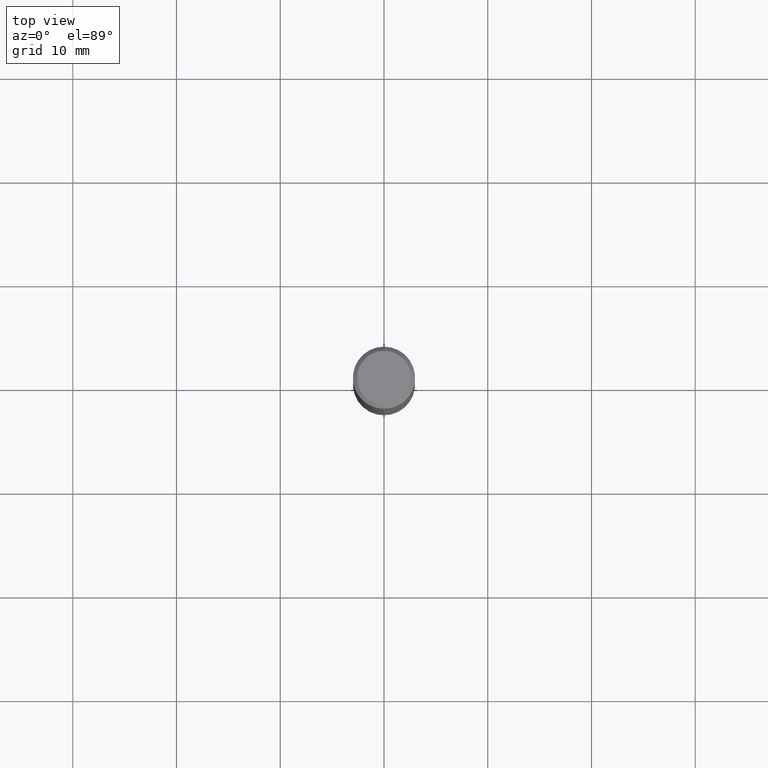
[diagram: clean part render]
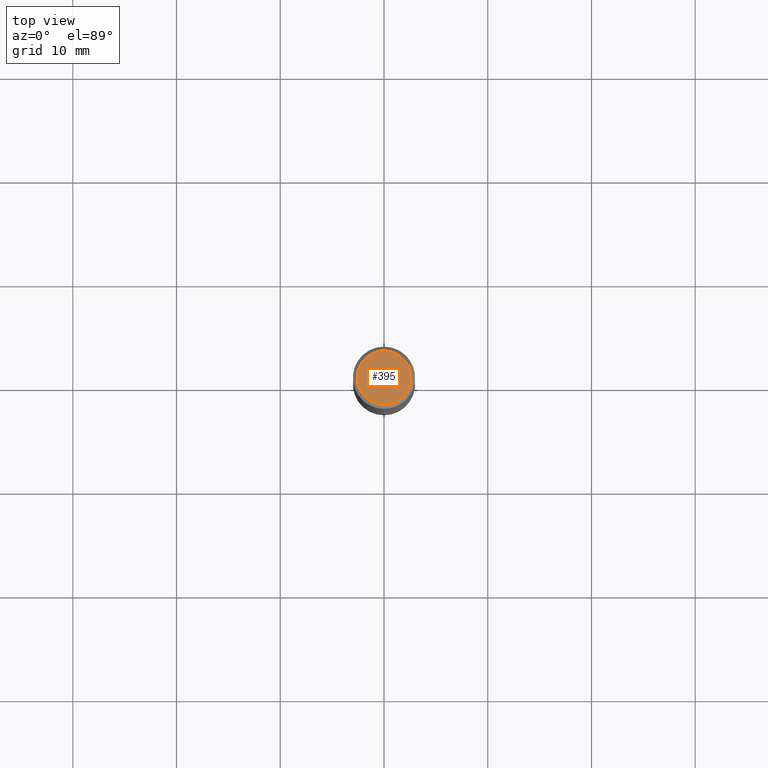
[diagram: same view with one face highlighted and labeled with its STEP entity id]
A machine part, top view. The second image highlights one B-rep face of the part: STEP entity #395.
In plain terms, the highlighted planar face has unit normal (-0, 0, 1).
Its self-contained STEP definition (entity closure, byte-faithful):
#323=EDGE_CURVE('',#615,#711,#859,.T.);
#395=ADVANCED_FACE('',(#938),#939,.T.);
#507=EDGE_CURVE('',#711,#615,#1061,.T.);
#615=VERTEX_POINT('',#1179);
#711=VERTEX_POINT('',#1281);
#859=CIRCLE('',#1616,2.6);
#938=FACE_OUTER_BOUND('',#2208,.T.);
#939=PLANE('',#2209);
#1061=CIRCLE('',#4133,2.6);
#1179=CARTESIAN_POINT('',(3.18397651993818E-016,-2.6,0.0));
#1281=CARTESIAN_POINT('',(0.0,2.6,0.0));
#1616=AXIS2_PLACEMENT_3D('',#7313,#7314,#7315);
#2208=EDGE_LOOP('',(#7421,#7422));
#2209=AXIS2_PLACEMENT_3D('',#7423,#7424,#7425);
#4133=AXIS2_PLACEMENT_3D('',#7548,#7549,#7550);
#7313=CARTESIAN_POINT('',(0.0,0.0,0.0));
#7314=DIRECTION('',(0.0,0.0,-1.0));
#7315=DIRECTION('',(0.0,1.0,0.0));
#7421=ORIENTED_EDGE('',*,*,#507,.F.);
#7422=ORIENTED_EDGE('',*,*,#323,.F.);
#7423=CARTESIAN_POINT('',(0.0,1.3,0.0));
#7424=DIRECTION('',(-0.0,0.0,1.0));
#7425=DIRECTION('',(0.0,-1.0,0.0));
#7548=CARTESIAN_POINT('',(0.0,0.0,0.0));
#7549=DIRECTION('',(0.0,0.0,-1.0));
#7550=DIRECTION('',(0.0,1.0,0.0));